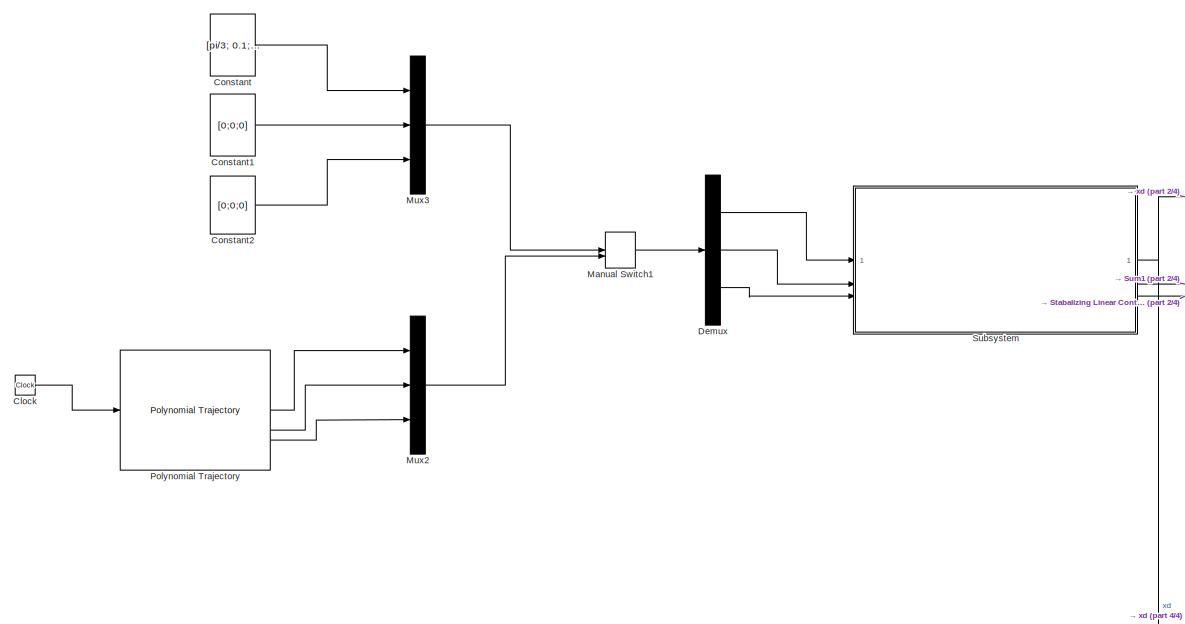
[diagram: root canvas - part 1/4, top left region]
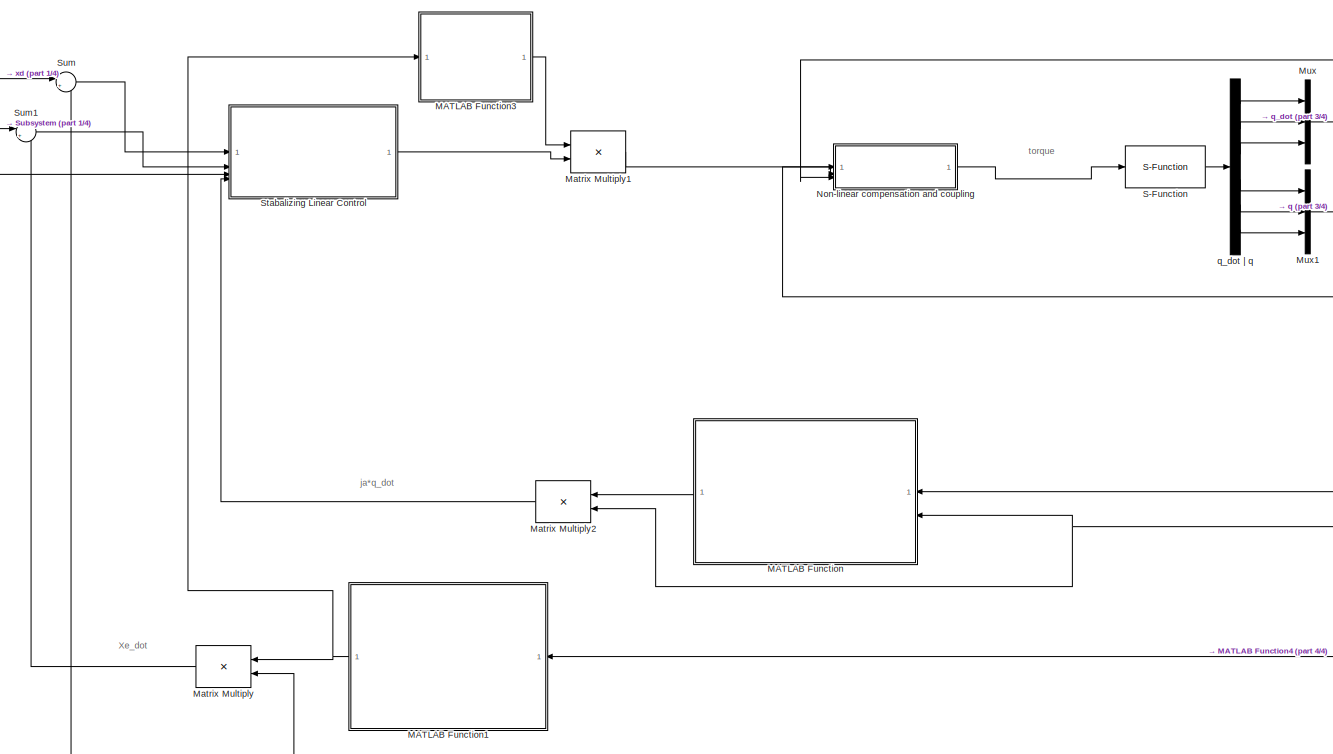
[diagram: root canvas - part 2/4, central region]
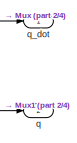
[diagram: root canvas - part 3/4, top right region]
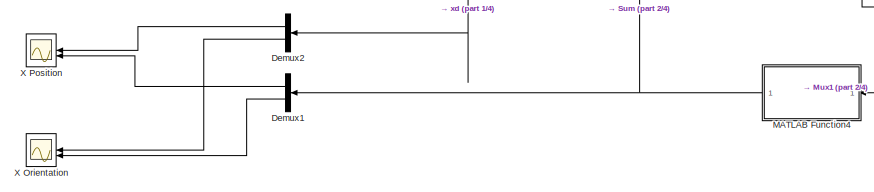
[diagram: root canvas - part 4/4, bottom center region]
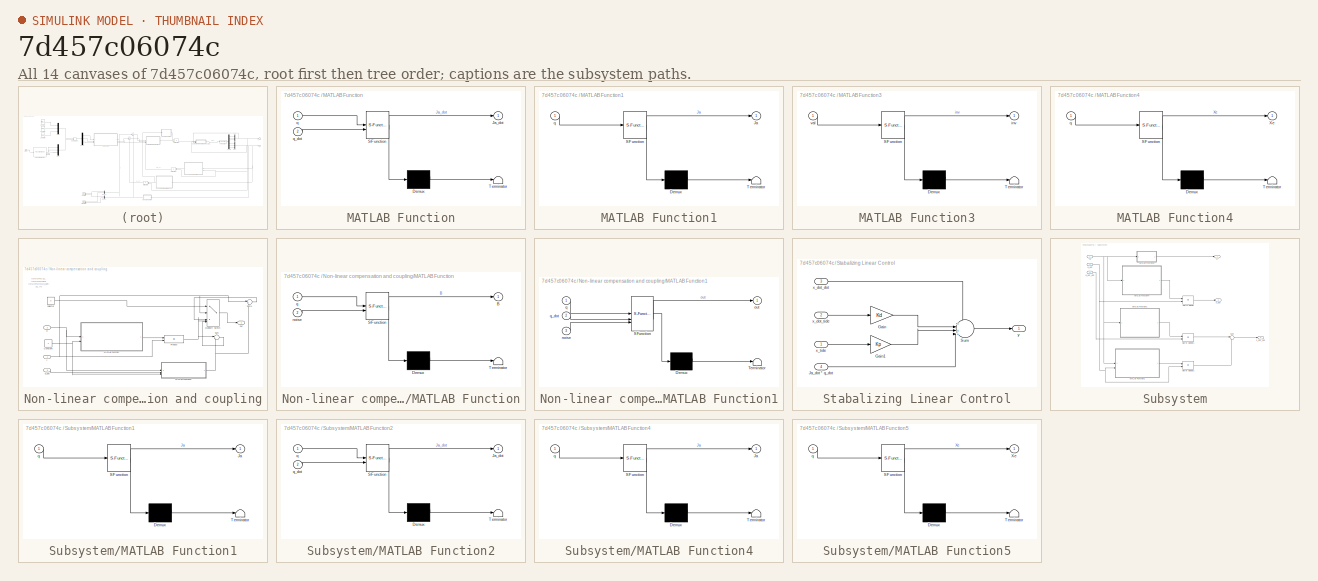
[diagram: thumbnail index - all 14 canvases of the model, root first then tree order]
MODEL slx_7d457c06074c
KIND model
CONFIG AbsTol = auto
CONFIG EnableMultiTasking = off
CONFIG FixedStep = auto
CONFIG MaxStep = auto
CONFIG MinStep = auto
CONFIG RelTol = 1e-3
CONFIG SampleTimeConstraint = Unconstrained
CONFIG SolverName = VariableStepAuto
CONFIG StartTime = 0.0
CONFIG StopTime = 10.0
BLOCK [Clock] Clock
BLOCK [Constant] Constant
  Value = [pi/3; 0.1; -0.1]
  VectorParams1D = off
BLOCK [Constant] Constant1
  Value = [0;0;0]
  VectorParams1D = off
BLOCK [Constant] Constant2
  Value = [0;0;0]
  VectorParams1D = off
BLOCK [Demux] Demux
  Outputs = 3
BLOCK [Demux] Demux1
  Outputs = 2
BLOCK [Demux] Demux2
  Outputs = 2
BLOCK [SubSystem] MATLAB Function
  ErrorFcn = Stateflow.Translate.translate
  LibrarySourceBlock = simulink/User-Defined\nFunctions/MATLAB Function
  PermitHierarchicalResolution = ExplicitOnly
  SFBlockType = MATLAB Function
  TreatAsAtomicUnit = on
BLOCK [Demux] MATLAB Function/ Demux 
  Outputs = 1
BLOCK [S-Function] MATLAB Function/ SFunction 
  EnableBusSupport = on
  FunctionName = sf_sfun
  PortCounts = [2 2]
  SFcnIsStateOwnerBlock = off
  SFunctionDeploymentMode = off
  Tag = Stateflow S-Function 3
BLOCK [Terminator] MATLAB Function/ Terminator 
BLOCK [Outport] MATLAB Function/Ja_dot
BLOCK [Inport] MATLAB Function/q
BLOCK [Inport] MATLAB Function/q_dot
  Port = 2
BLOCK [SubSystem] MATLAB Function1
  ErrorFcn = Stateflow.Translate.translate
  LibrarySourceBlock = simulink/User-Defined\nFunctions/MATLAB Function
  NameLocation = top
  PermitHierarchicalResolution = ExplicitOnly
  SFBlockType = MATLAB Function
  TreatAsAtomicUnit = on
BLOCK [Demux] MATLAB Function1/ Demux 
  Outputs = 1
BLOCK [S-Function] MATLAB Function1/ SFunction 
  EnableBusSupport = on
  FunctionName = sf_sfun
  PortCounts = [1 2]
  SFcnIsStateOwnerBlock = off
  SFunctionDeploymentMode = off
  Tag = Stateflow S-Function 11
BLOCK [Terminator] MATLAB Function1/ Terminator 
BLOCK [Outport] MATLAB Function1/Ja
BLOCK [Inport] MATLAB Function1/q
BLOCK [SubSystem] MATLAB Function3
  ErrorFcn = Stateflow.Translate.translate
  LibrarySourceBlock = simulink/User-Defined\nFunctions/MATLAB Function
  PermitHierarchicalResolution = ExplicitOnly
  SFBlockType = MATLAB Function
  TreatAsAtomicUnit = on
BLOCK [Demux] MATLAB Function3/ Demux 
  Outputs = 1
BLOCK [S-Function] MATLAB Function3/ SFunction 
  EnableBusSupport = on
  FunctionName = sf_sfun
  PortCounts = [1 2]
  SFcnIsStateOwnerBlock = off
  SFunctionDeploymentMode = off
  Tag = Stateflow S-Function 10
BLOCK [Terminator] MATLAB Function3/ Terminator 
BLOCK [Outport] MATLAB Function3/inv
BLOCK [Inport] MATLAB Function3/val
BLOCK [SubSystem] MATLAB Function4
  ErrorFcn = Stateflow.Translate.translate
  LibrarySourceBlock = simulink/User-Defined\nFunctions/MATLAB Function
  NameLocation = top
  PermitHierarchicalResolution = ExplicitOnly
  SFBlockType = MATLAB Function
  TreatAsAtomicUnit = on
BLOCK [Demux] MATLAB Function4/ Demux 
  Outputs = 1
BLOCK [S-Function] MATLAB Function4/ SFunction 
  EnableBusSupport = on
  FunctionName = sf_sfun
  PortCounts = [1 2]
  SFcnIsStateOwnerBlock = off
  SFunctionDeploymentMode = off
  Tag = Stateflow S-Function 9
BLOCK [Terminator] MATLAB Function4/ Terminator 
BLOCK [Outport] MATLAB Function4/Xe
BLOCK [Inport] MATLAB Function4/q
BLOCK [ManualSwitch] Manual Switch1
BLOCK [Product] Matrix Multiply
  Multiplication = Matrix(*)
BLOCK [Product] Matrix Multiply1
  Multiplication = Matrix(*)
BLOCK [Product] Matrix Multiply2
  Multiplication = Matrix(*)
BLOCK [Mux] Mux
  DisplayOption = bar
  Inputs = 3
BLOCK [Mux] Mux1
  DisplayOption = bar
  Inputs = 3
BLOCK [Mux] Mux2
  DisplayOption = bar
  Inputs = 3
BLOCK [Mux] Mux3
  DisplayOption = bar
  Inputs = 3
BLOCK [SubSystem] Non-linear compensation and coupling
BLOCK [Constant] Non-linear compensation and coupling/Constant
BLOCK [SubSystem] Non-linear compensation and coupling/MATLAB Function
  ErrorFcn = Stateflow.Translate.translate
  LibrarySourceBlock = simulink/User-Defined\nFunctions/MATLAB Function
  PermitHierarchicalResolution = ExplicitOnly
  SFBlockType = MATLAB Function
  TreatAsAtomicUnit = on
BLOCK [Demux] Non-linear compensation and coupling/MATLAB Function/ Demux 
  Outputs = 1
BLOCK [S-Function] Non-linear compensation and coupling/MATLAB Function/ SFunction 
  EnableBusSupport = on
  FunctionName = sf_sfun
  Parameters = params
  PortCounts = [2 2]
  SFcnIsStateOwnerBlock = off
  SFunctionDeploymentMode = off
  Tag = Stateflow S-Function 2
BLOCK [Terminator] Non-linear compensation and coupling/MATLAB Function/ Terminator 
BLOCK [Outport] Non-linear compensation and coupling/MATLAB Function/B
BLOCK [Inport] Non-linear compensation and coupling/MATLAB Function/noise
  Port = 2
BLOCK [Inport] Non-linear compensation and coupling/MATLAB Function/q
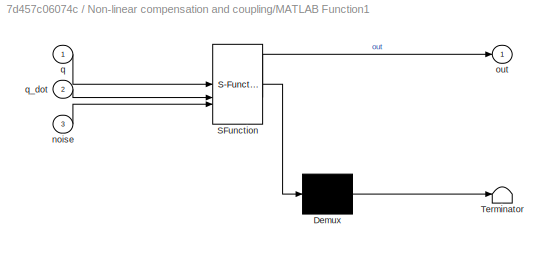
BLOCK [SubSystem] Non-linear compensation and coupling/MATLAB Function1
  ErrorFcn = Stateflow.Translate.translate
  LibrarySourceBlock = simulink/User-Defined\nFunctions/MATLAB Function
  PermitHierarchicalResolution = ExplicitOnly
  SFBlockType = MATLAB Function
  TreatAsAtomicUnit = on
BLOCK [Demux] Non-linear compensation and coupling/MATLAB Function1/ Demux 
  Outputs = 1
BLOCK [S-Function] Non-linear compensation and coupling/MATLAB Function1/ SFunction 
  EnableBusSupport = on
  FunctionName = sf_sfun
  Parameters = params
  PortCounts = [3 2]
  SFcnIsStateOwnerBlock = off
  SFunctionDeploymentMode = off
  Tag = Stateflow S-Function 1
BLOCK [Terminator] Non-linear compensation and coupling/MATLAB Function1/ Terminator 
BLOCK [Inport] Non-linear compensation and coupling/MATLAB Function1/noise
  Port = 3
BLOCK [Outport] Non-linear compensation and coupling/MATLAB Function1/out
BLOCK [Inport] Non-linear compensation and coupling/MATLAB Function1/q
BLOCK [Inport] Non-linear compensation and coupling/MATLAB Function1/q_dot
  Port = 2
BLOCK [MultiPortSwitch] Non-linear compensation and coupling/Multiport Switch
  InputSameDT = off
  Inputs = 4
  SaturateOnIntegerOverflow = off
BLOCK [Product] Non-linear compensation and coupling/Product
  Multiplication = Matrix(*)
BLOCK [Sum] Non-linear compensation and coupling/Sum
  Inputs = |++
BLOCK [Sum] Non-linear compensation and coupling/Sum1
  Inputs = |++
BLOCK [Outport] Non-linear compensation and coupling/out
BLOCK [Inport] Non-linear compensation and coupling/q
  Port = 2
BLOCK [Inport] Non-linear compensation and coupling/q_dot
  Port = 3
BLOCK [Constant] Non-linear compensation and coupling/selector
  Value = 3
BLOCK [Inport] Non-linear compensation and coupling/y
BLOCK [Reference] Polynomial Trajectory  REF=robotcorelib/Polynomial Trajectory
  LibrarySourceBlock = robotutilslib/Polynomial Trajectory
  SourceBlock = robotcorelib/Polynomial Trajectory
  SourceType = robotics.slcore.internal.block.PolyTrajSys
BLOCK [S-Function] S-Function
  EnableBusSupport = off
  FunctionName = Manipulator
  Parameters = params
  SFcnIsStateOwnerBlock = off
  SFunctionDeploymentMode = off
BLOCK [SubSystem] Stabalizing Linear Control
BLOCK [Gain] Stabalizing Linear Control/Gain
  Gain = Kd
  Multiplication = Matrix(K*u)
BLOCK [Gain] Stabalizing Linear Control/Gain1
  Gain = Kp
  Multiplication = Matrix(K*u)
BLOCK [Inport] Stabalizing Linear Control/Ja_dot * q_dot
  Port = 4
BLOCK [Sum] Stabalizing Linear Control/Sum
  Inputs = +|++|-|
BLOCK [Inport] Stabalizing Linear Control/x_dot_dot
  Port = 3
BLOCK [Inport] Stabalizing Linear Control/x_dot_tide
  Port = 2
BLOCK [Inport] Stabalizing Linear Control/x_tide
BLOCK [Outport] Stabalizing Linear Control/y
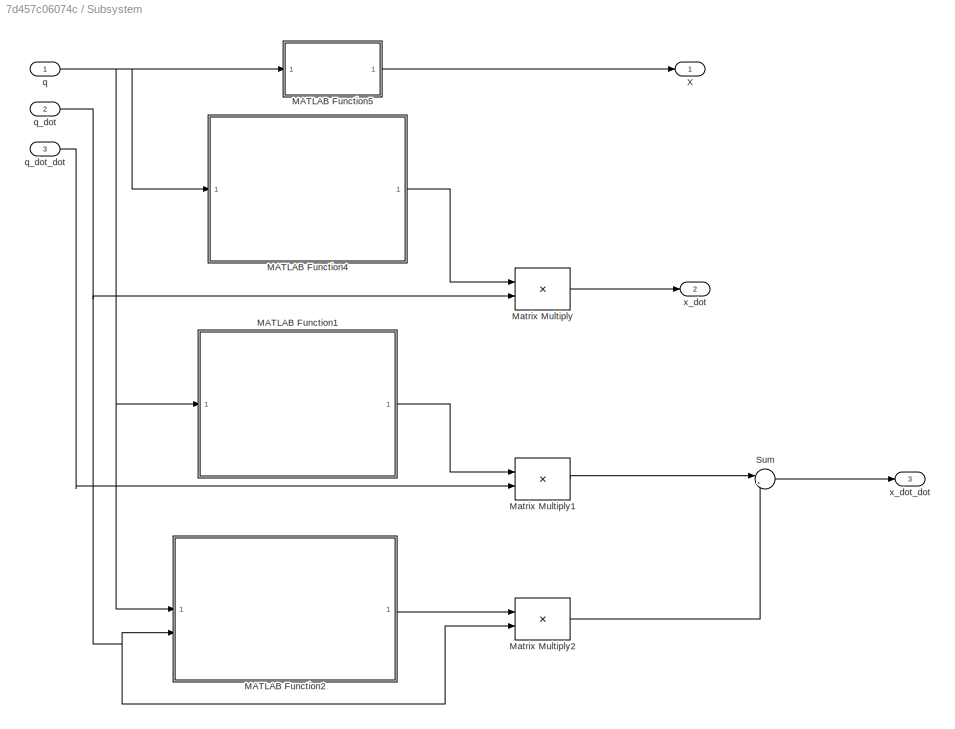
BLOCK [SubSystem] Subsystem
BLOCK [SubSystem] Subsystem/MATLAB Function1
  ErrorFcn = Stateflow.Translate.translate
  LibrarySourceBlock = simulink/User-Defined\nFunctions/MATLAB Function
  NameLocation = top
  PermitHierarchicalResolution = ExplicitOnly
  SFBlockType = MATLAB Function
  TreatAsAtomicUnit = on
BLOCK [Demux] Subsystem/MATLAB Function1/ Demux 
  Outputs = 1
BLOCK [S-Function] Subsystem/MATLAB Function1/ SFunction 
  EnableBusSupport = on
  FunctionName = sf_sfun
  PortCounts = [1 2]
  SFcnIsStateOwnerBlock = off
  SFunctionDeploymentMode = off
  Tag = Stateflow S-Function 4
BLOCK [Terminator] Subsystem/MATLAB Function1/ Terminator 
BLOCK [Outport] Subsystem/MATLAB Function1/Ja
BLOCK [Inport] Subsystem/MATLAB Function1/q
BLOCK [SubSystem] Subsystem/MATLAB Function2
  ErrorFcn = Stateflow.Translate.translate
  LibrarySourceBlock = simulink/User-Defined\nFunctions/MATLAB Function
  PermitHierarchicalResolution = ExplicitOnly
  SFBlockType = MATLAB Function
  TreatAsAtomicUnit = on
BLOCK [Demux] Subsystem/MATLAB Function2/ Demux 
  Outputs = 1
BLOCK [S-Function] Subsystem/MATLAB Function2/ SFunction 
  EnableBusSupport = on
  FunctionName = sf_sfun
  PortCounts = [2 2]
  SFcnIsStateOwnerBlock = off
  SFunctionDeploymentMode = off
  Tag = Stateflow S-Function 8
BLOCK [Terminator] Subsystem/MATLAB Function2/ Terminator 
BLOCK [Outport] Subsystem/MATLAB Function2/Ja_dot
BLOCK [Inport] Subsystem/MATLAB Function2/q
BLOCK [Inport] Subsystem/MATLAB Function2/q_dot
  Port = 2
BLOCK [SubSystem] Subsystem/MATLAB Function4
  ErrorFcn = Stateflow.Translate.translate
  LibrarySourceBlock = simulink/User-Defined\nFunctions/MATLAB Function
  NameLocation = top
  PermitHierarchicalResolution = ExplicitOnly
  SFBlockType = MATLAB Function
  TreatAsAtomicUnit = on
BLOCK [Demux] Subsystem/MATLAB Function4/ Demux 
  Outputs = 1
BLOCK [S-Function] Subsystem/MATLAB Function4/ SFunction 
  EnableBusSupport = on
  FunctionName = sf_sfun
  PortCounts = [1 2]
  SFcnIsStateOwnerBlock = off
  SFunctionDeploymentMode = off
  Tag = Stateflow S-Function 6
BLOCK [Terminator] Subsystem/MATLAB Function4/ Terminator 
BLOCK [Outport] Subsystem/MATLAB Function4/Ja
BLOCK [Inport] Subsystem/MATLAB Function4/q
BLOCK [SubSystem] Subsystem/MATLAB Function5
  ErrorFcn = Stateflow.Translate.translate
  LibrarySourceBlock = simulink/User-Defined\nFunctions/MATLAB Function
  NameLocation = top
  PermitHierarchicalResolution = ExplicitOnly
  SFBlockType = MATLAB Function
  TreatAsAtomicUnit = on
BLOCK [Demux] Subsystem/MATLAB Function5/ Demux 
  Outputs = 1
BLOCK [S-Function] Subsystem/MATLAB Function5/ SFunction 
  EnableBusSupport = on
  FunctionName = sf_sfun
  PortCounts = [1 2]
  SFcnIsStateOwnerBlock = off
  SFunctionDeploymentMode = off
  Tag = Stateflow S-Function 5
BLOCK [Terminator] Subsystem/MATLAB Function5/ Terminator 
BLOCK [Outport] Subsystem/MATLAB Function5/Xe
BLOCK [Inport] Subsystem/MATLAB Function5/q
BLOCK [Product] Subsystem/Matrix Multiply
  Multiplication = Matrix(*)
BLOCK [Product] Subsystem/Matrix Multiply1
  Multiplication = Matrix(*)
BLOCK [Product] Subsystem/Matrix Multiply2
  Multiplication = Matrix(*)
BLOCK [Sum] Subsystem/Sum
  Inputs = |++
BLOCK [Outport] Subsystem/X
BLOCK [Inport] Subsystem/q
BLOCK [Inport] Subsystem/q_dot
  Port = 2
BLOCK [Inport] Subsystem/q_dot_dot
  Port = 3
BLOCK [Outport] Subsystem/x_dot
  Port = 2
BLOCK [Outport] Subsystem/x_dot_dot
  Port = 3
BLOCK [Sum] Sum
  Inputs = |+-
BLOCK [Sum] Sum1
  Inputs = |+-
BLOCK [Scope] X Orientation
  Floating = off
  NumInputPorts = 2
  ScopeSpecificationString = Simulink.scopes.TimeScopeBlockCfg('CurrentConfiguration', extmgr.ConfigurationSet(extmgr.Configuration('Core','General UI',true),extmgr.Configuration('Core','Source UI',true),extmgr.Configuration('Sources','WiredSimulink',true,'DataLoggingVariableName','ScopeData1'),extmgr.Configuration('Visuals','Time Domain',true,'SerializedDisplays',{struct('MinYLimReal','-3.46884','MaxYLimReal','-0.19635','YLa...<+1919ch>
BLOCK [Scope] X Position
  Floating = off
  NumInputPorts = 2
  ScopeSpecificationString = Simulink.scopes.TimeScopeBlockCfg('CurrentConfiguration', extmgr.ConfigurationSet(extmgr.Configuration('Core','General UI',true),extmgr.Configuration('Core','Source UI',true),extmgr.Configuration('Sources','WiredSimulink',true,'DataLoggingVariableName','ScopeData2'),extmgr.Configuration('Visuals','Time Domain',true,'SerializedDisplays',{struct('MinYLimReal','-0.72889','MaxYLimReal','0.95845','YLab...<+1955ch>
BLOCK [Outport] q
  Port = 2
BLOCK [Outport] q_dot
BLOCK [Demux] q_dot | q
  Outputs = 6
ANNOTATION (root): Xe_dot
ANNOTATION (root): ja*q_dot
ANNOTATION (root): torque
ANNOTATION Non-linear compensation and coupling: IGNORE ALL IGNORE B(q) IGNORE n(q,q_dot) ALL IN
LINE Clock:1 -> Polynomial Trajectory:1
LINE Constant1:1 -> Mux3:2
LINE Constant2:1 -> Mux3:3
LINE Constant:1 -> Mux3:1
LINE Demux1:1 -> X Position:2
LINE Demux1:2 -> X Orientation:2
LINE Demux2:1 -> X Position:1
LINE Demux2:2 -> X Orientation:1
LINE Demux:1 -> Subsystem:1
LINE Demux:2 -> Subsystem:2
LINE Demux:3 -> Subsystem:3
NET MATLAB Function1:1 -> MATLAB Function3:1, Matrix Multiply:1
LINE MATLAB Function3:1 -> Matrix Multiply1:1
NET MATLAB Function4:1 -> Demux1:1, Sum:2
LINE MATLAB Function:1 -> Matrix Multiply2:1
LINE Manual Switch1:1 -> Demux:1
LINE Matrix Multiply1:1 -> Non-linear compensation and coupling:1
LINE Matrix Multiply2:1 -> Stabalizing Linear Control:4
LINE Matrix Multiply:1 -> Sum1:2
NET Mux1:1 -> MATLAB Function1:1, MATLAB Function4:1, MATLAB Function:1, Non-linear compensation and coupling:2, q:1
LINE Mux2:1 -> Manual Switch1:2
LINE Mux3:1 -> Manual Switch1:1
NET Mux:1 -> MATLAB Function:2, Matrix Multiply2:2, Matrix Multiply:2, Non-linear compensation and coupling:3, q_dot:1
NET Non-linear compensation and coupling/Constant:1 -> Non-linear compensation and coupling/MATLAB Function1:3, Non-linear compensation and coupling/MATLAB Function:2
NET Non-linear compensation and coupling/MATLAB Function1:1 -> Non-linear compensation and coupling/Sum1:2, Non-linear compensation and coupling/Sum:2
LINE Non-linear compensation and coupling/MATLAB Function:1 -> Non-linear compensation and coupling/Product:1
LINE Non-linear compensation and coupling/Multiport Switch:1 -> Non-linear compensation and coupling/out:1
NET Non-linear compensation and coupling/Product:1 -> Non-linear compensation and coupling/Multiport Switch:4, Non-linear compensation and coupling/Sum:1
LINE Non-linear compensation and coupling/Sum1:1 -> Non-linear compensation and coupling/Multiport Switch:3
LINE Non-linear compensation and coupling/Sum:1 -> Non-linear compensation and coupling/Multiport Switch:5
NET Non-linear compensation and coupling/q:1 -> Non-linear compensation and coupling/MATLAB Function1:1, Non-linear compensation and coupling/MATLAB Function:1
LINE Non-linear compensation and coupling/q_dot:1 -> Non-linear compensation and coupling/MATLAB Function1:2
LINE Non-linear compensation and coupling/selector:1 -> Non-linear compensation and coupling/Multiport Switch:1
NET Non-linear compensation and coupling/y:1 -> Non-linear compensation and coupling/Multiport Switch:2, Non-linear compensation and coupling/Product:2, Non-linear compensation and coupling/Sum1:1
LINE Non-linear compensation and coupling:1 -> S-Function:1
LINE Polynomial Trajectory:1 -> Mux2:1
LINE Polynomial Trajectory:2 -> Mux2:2
LINE Polynomial Trajectory:3 -> Mux2:3
LINE S-Function:1 -> q_dot | q:1
LINE Stabalizing Linear Control/Gain1:1 -> Stabalizing Linear Control/Sum:3
LINE Stabalizing Linear Control/Gain:1 -> Stabalizing Linear Control/Sum:2
LINE Stabalizing Linear Control/Ja_dot * q_dot:1 -> Stabalizing Linear Control/Sum:4
LINE Stabalizing Linear Control/Sum:1 -> Stabalizing Linear Control/y:1
LINE Stabalizing Linear Control/x_dot_dot:1 -> Stabalizing Linear Control/Sum:1
LINE Stabalizing Linear Control/x_dot_tide:1 -> Stabalizing Linear Control/Gain:1
LINE Stabalizing Linear Control/x_tide:1 -> Stabalizing Linear Control/Gain1:1
LINE Stabalizing Linear Control:1 -> Matrix Multiply1:2
LINE Subsystem/MATLAB Function1:1 -> Subsystem/Matrix Multiply1:1
LINE Subsystem/MATLAB Function2:1 -> Subsystem/Matrix Multiply2:1
LINE Subsystem/MATLAB Function4:1 -> Subsystem/Matrix Multiply:1
LINE Subsystem/MATLAB Function5:1 -> Subsystem/X:1
LINE Subsystem/Matrix Multiply1:1 -> Subsystem/Sum:1
LINE Subsystem/Matrix Multiply2:1 -> Subsystem/Sum:2
LINE Subsystem/Matrix Multiply:1 -> Subsystem/x_dot:1
LINE Subsystem/Sum:1 -> Subsystem/x_dot_dot:1
NET Subsystem/q:1 -> Subsystem/MATLAB Function1:1, Subsystem/MATLAB Function2:1, Subsystem/MATLAB Function4:1, Subsystem/MATLAB Function5:1
NET Subsystem/q_dot:1 -> Subsystem/MATLAB Function2:2, Subsystem/Matrix Multiply2:2, Subsystem/Matrix Multiply:2
LINE Subsystem/q_dot_dot:1 -> Subsystem/Matrix Multiply1:2
NET Subsystem:1 -> Demux2:1, Sum:1
LINE Subsystem:2 -> Sum1:1
LINE Subsystem:3 -> Stabalizing Linear Control:3
LINE Sum1:1 -> Stabalizing Linear Control:2
LINE Sum:1 -> Stabalizing Linear Control:1
LINE q_dot | q:1 -> Mux:1
LINE q_dot | q:2 -> Mux:2
LINE q_dot | q:3 -> Mux:3
LINE q_dot | q:4 -> Mux1:1
LINE q_dot | q:5 -> Mux1:2
LINE q_dot | q:6 -> Mux1:3
note: NET lines group one-source signal fan-out (src -> all destinations, sorted); 1:1 wires keep LINE
CHART Non-linear compensation and coupling/MATLAB Function1 states=1 transitions=1
  STATE_LABEL 'eML_blk_kernel()'
  STATE_LABEL 'SCRIPT:\nfunction out = n(q, q_dot, params, noise)\n    \n    m1 = params.m(1) * noise;\n    m2 = params.m(2) * noise;\n    m3 = params.m(3) * noise;\n\n    q1 = q(1);\n    q2 = q(2);\n    q3 = q(3);\n\n    q1_dot = q_dot(1);\n    q2_dot = q_dot(2);\n    q3_dot = q_dot(3);\n\n    g = params.g;\n\n    Fv = params.Fv;\n \n    r1 = 0.4;\n    a1 = 0.02;\n    a2 = 0.03;\n    a3 = 0.01;\n    b1 = 0.1256;\n    b2 = 0.03;\n    b3...<+1127ch>'
CHART Non-linear compensation and coupling/MATLAB Function states=1 transitions=1
  STATE_LABEL 'eML_blk_kernel()'
  STATE_LABEL 'SCRIPT:\nfunction B = inertiaMatrix(q, params, noise)\n    q1 = q(1);\n    q2 = q(2);\n    q3 = q(3);\n\n    m1 = params.m(1) * noise;\n    m2 = params.m(2) * noise;\n    m3 = params.m(3) * noise;\n\n    a1 = 0.02;\n    a2 = 0.03;\n    a3 = 0.01;\n    b1 = 0.1256;\n    b2 = 0.03;\n    b3 = 0.01;\n    c1 = 0.4;\n    c2 = 0.46;\n    c3 = 0.15;\n\nB = [[(a2^2*m2)/12 + (3*a1^4*m1)/2 + (a3^2*m3)/12 + (3*b1^4*m1)/2 + (b3^2...<+611ch>'
CHART MATLAB Function states=1 transitions=1
  STATE_LABEL 'eML_blk_kernel()'
  STATE_LABEL 'SCRIPT:\nfunction Ja_dot = AnalyticalJacobian_Dot(q, q_dot)\nq1 = q(1);\nq2 = q(2);\nq3 = q(3);\nq1_dot = q_dot(1);\nq2_dot = q_dot(2);\nq3_dot = q_dot(3);\n\n    r1 = 0.4;\n    a1 = 0.02;\n    a2 = 0.03;\n    a3 = 0.01;\n    b1 = 0.1256;\n    b2 = 0.03;\n    b3 = 0.01;\n    c1 = 0.4;\n    c2 = 0.46;\n    c3 = 0.15;\n\n    H = [[0, -sin(q1), cos(q1),              cos(q1)*(c1 + c3 + q3)]\n[1,        0,       0,        ...<+696ch>'
CHART Subsystem/MATLAB Function1 states=1 transitions=1
  STATE_LABEL 'eML_blk_kernel()'
  STATE_LABEL 'SCRIPT:\nfunction Ja = AnalyticalJacobian(q)\n    q1 = q(1);\n    q2 = q(2);\n    q3 = q(3);\n\n    r1 = 0.4;\n    a1 = 0.02;\n    a2 = 0.03;\n    a3 = 0.01;\n    b1 = 0.1256;\n    b2 = 0.03;\n    b3 = 0.01;\n    c1 = 0.4;\n    c2 = 0.46;\n    c3 = 0.15;\n\n    H = [[0, -sin(q1), cos(q1),              cos(q1)*(c1 + c3 + q3)]\n[1,        0,       0,                           - c2 - q2]\n[0,  cos(q1), sin(q1), r1 + si...<+525ch>'
CHART Subsystem/MATLAB Function5 states=1 transitions=1
  STATE_LABEL 'eML_blk_kernel()'
  STATE_LABEL 'SCRIPT:\nfunction Xe = Kinematics(q)\n    q1 = q(1);\n    q2 = q(2);\n    q3 = q(3);\n    \n    r1 = 0.4;\n    a1 = 0.02;\n    a2 = 0.03;\n    a3 = 0.01;\n    b1 = 0.1256;\n    b2 = 0.03;\n    b3 = 0.01;\n    c1 = 0.4;\n    c2 = 0.46;\n    c3 = 0.15;\n    \n H = [[0, -sin(q1), cos(q1),              cos(q1)*(c1 + c3 + q3)]\n[1,        0,       0,                           - c2 - q2]\n[0,  cos(q1), sin(q1), r1 + sin(q...<+166ch>'
CHART Subsystem/MATLAB Function4 states=1 transitions=1
  STATE_LABEL 'eML_blk_kernel()'
  STATE_LABEL 'SCRIPT:\nfunction Ja = AnalyticalJacobian(q)\n    q1 = q(1);\n    q2 = q(2);\n    q3 = q(3);\n\n    r1 = 0.4;\n    a1 = 0.02;\n    a2 = 0.03;\n    a3 = 0.01;\n    b1 = 0.1256;\n    b2 = 0.03;\n    b3 = 0.01;\n    c1 = 0.4;\n    c2 = 0.46;\n    c3 = 0.15;\n\n    H = [[0, -sin(q1), cos(q1),              cos(q1)*(c1 + c3 + q3)]\n[1,        0,       0,                           - c2 - q2]\n[0,  cos(q1), sin(q1), r1 + si...<+525ch>'
CHART Subsystem/MATLAB Function2 states=1 transitions=1
  STATE_LABEL 'eML_blk_kernel()'
  STATE_LABEL 'SCRIPT:\nfunction Ja_dot = AnalyticalJacobian_Dot(q, q_dot)\nq1 = q(1);\nq2 = q(2);\nq3 = q(3);\n\nr1 = 0.4;\na1 = 0.02;\na2 = 0.03;\na3 = 0.01;\nb1 = 0.1256;\nb2 = 0.03;\nb3 = 0.01;\nc1 = 0.4;\nc2 = 0.46;\nc3 = 0.15;\n\nq1_dot = q_dot(1);\nq2_dot = q_dot(2);\nq3_dot = q_dot(3);\n\nH = [[0, -sin(q1), cos(q1),              cos(q1)*(c1 + c3 + q3)]\n[1,        0,       0,                           - c2 - q2]\n[0,  cos(q1),...<+598ch>'
CHART MATLAB Function4 states=1 transitions=1
  STATE_LABEL 'eML_blk_kernel()'
  STATE_LABEL 'SCRIPT:\nfunction Xe = Kinematics(q)\n    q1 = q(1);\n    q2 = q(2);\n    q3 = q(3);\n\n\n    r1 = 0.4;\n    a1 = 0.02;\n    a2 = 0.03;\n    a3 = 0.01;\n    b1 = 0.1256;\n    b2 = 0.03;\n    b3 = 0.01;\n    c1 = 0.4;\n    c2 = 0.46;\n    c3 = 0.15;\n\n H = [[0, -sin(q1), cos(q1),              cos(q1)*(c1 + c3 + q3)]\n[1,        0,       0,                           - c2 - q2]\n[0,  cos(q1), sin(q1), r1 + sin(q1)*(c3 ...<+159ch>'
CHART MATLAB Function3 states=1 transitions=1
  STATE_LABEL 'eML_blk_kernel()'
  STATE_LABEL 'SCRIPT:\nfunction inv = inverse(val)\n   inv = pinv(val);\nend\n'
CHART MATLAB Function1 states=1 transitions=1
  STATE_LABEL 'eML_blk_kernel()'
  STATE_LABEL 'SCRIPT:\nfunction Ja = AnalyticalJacobian(q)\n    q1 = q(1);\n    q2 = q(2);\n    q3 = q(3);\n\n    r1 = 0.4;\n    a1 = 0.02;\n    a2 = 0.03;\n    a3 = 0.01;\n    b1 = 0.1256;\n    b2 = 0.03;\n    b3 = 0.01;\n    c1 = 0.4;\n    c2 = 0.46;\n    c3 = 0.15;\n\n    H = [[0, -sin(q1), cos(q1),              cos(q1)*(c1 + c3 + q3)]\n[1,        0,       0,                           - c2 - q2]\n[0,  cos(q1), sin(q1), r1 + si...<+651ch>'
CHART  states=0 transitions=0
CHART  states=0 transitions=0
CHART  states=0 transitions=0
CHART  states=0 transitions=0
CHART  states=0 transitions=0
CHART  states=0 transitions=0
CHART  states=0 transitions=0
CHART  states=0 transitions=0
CHART  states=0 transitions=0
CHART  states=0 transitions=0
